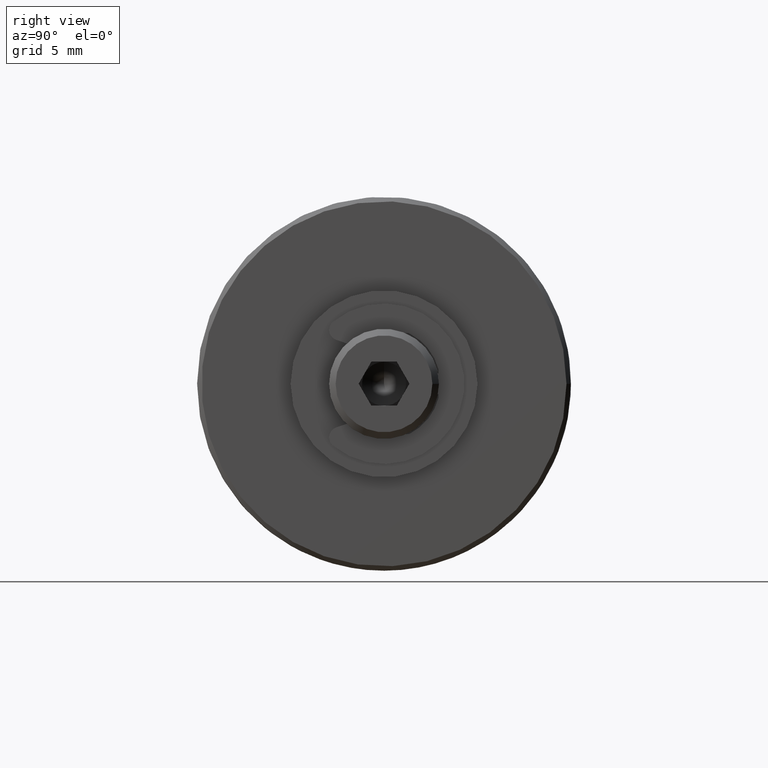
[diagram: clean part render]
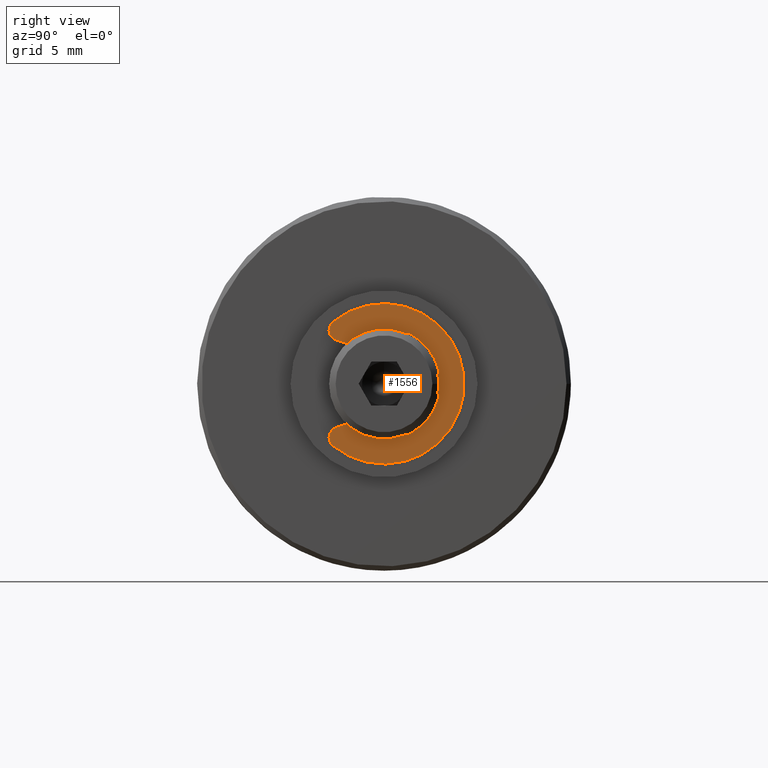
[diagram: same view with one face highlighted and labeled with its STEP entity id]
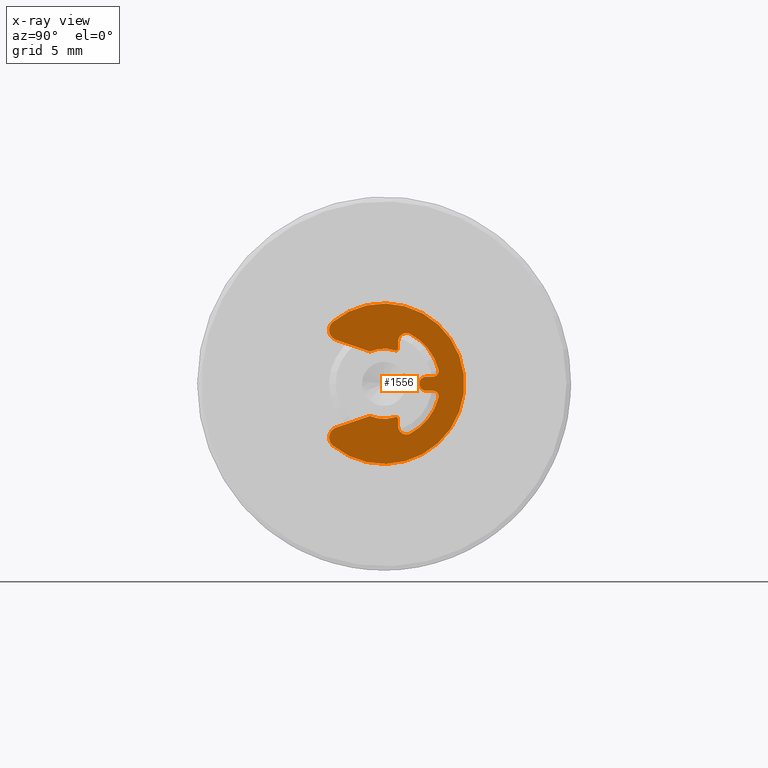
[diagram: x-ray of the same camera — body ghosted, the highlighted face saturated]
A machine part, right view. The second image highlights one B-rep face of the part: STEP entity #1556.
The next image is the same camera in x-ray: the body ghosted, the highlighted face saturated — about 0% of this face is hidden behind the body in this view.
In plain terms, the highlighted planar face has unit normal (-1, 0, 0).
Its self-contained STEP definition (entity closure, byte-faithful):
#124=PLANE('',#1879);
#247=FACE_OUTER_BOUND('',#353,.T.);
#353=EDGE_LOOP('',(#1410,#1411,#1412,#1413,#1414,#1415,#1416,#1417,#1418,
#1419,#1420,#1421,#1422,#1423,#1424,#1425,#1426,#1427,#1428,#1429));
#443=LINE('',#2757,#558);
#448=LINE('',#2775,#563);
#454=LINE('',#2799,#569);
#458=LINE('',#2811,#573);
#464=LINE('',#2835,#579);
#469=LINE('',#2853,#584);
#558=VECTOR('',#2262,10.);
#563=VECTOR('',#2281,10.);
#569=VECTOR('',#2307,10.);
#573=VECTOR('',#2319,10.);
#579=VECTOR('',#2345,10.);
#584=VECTOR('',#2364,10.);
#645=CIRCLE('',#1833,3.65);
#647=CIRCLE('',#1836,0.48);
#649=CIRCLE('',#1840,1.6);
#651=CIRCLE('',#1843,0.096);
#653=CIRCLE('',#1847,0.384);
#655=CIRCLE('',#1850,2.56);
#657=CIRCLE('',#1853,0.256);
#659=CIRCLE('',#1857,0.32);
#661=CIRCLE('',#1861,0.256);
#663=CIRCLE('',#1864,2.56);
#665=CIRCLE('',#1867,0.384);
#667=CIRCLE('',#1871,0.096);
#669=CIRCLE('',#1874,1.6);
#671=CIRCLE('',#1878,0.48);
#770=VERTEX_POINT('',#2741);
#771=VERTEX_POINT('',#2743);
#773=VERTEX_POINT('',#2749);
#775=VERTEX_POINT('',#2755);
#777=VERTEX_POINT('',#2761);
#779=VERTEX_POINT('',#2767);
#781=VERTEX_POINT('',#2773);
#783=VERTEX_POINT('',#2779);
#785=VERTEX_POINT('',#2785);
#787=VERTEX_POINT('',#2791);
#789=VERTEX_POINT('',#2797);
#791=VERTEX_POINT('',#2803);
#793=VERTEX_POINT('',#2809);
#795=VERTEX_POINT('',#2815);
#797=VERTEX_POINT('',#2821);
#799=VERTEX_POINT('',#2827);
#801=VERTEX_POINT('',#2833);
#803=VERTEX_POINT('',#2839);
#805=VERTEX_POINT('',#2845);
#807=VERTEX_POINT('',#2851);
#964=EDGE_CURVE('',#770,#771,#645,.T.);
#968=EDGE_CURVE('',#773,#770,#647,.T.);
#971=EDGE_CURVE('',#775,#773,#443,.T.);
#974=EDGE_CURVE('',#777,#775,#649,.T.);
#977=EDGE_CURVE('',#779,#777,#651,.T.);
#980=EDGE_CURVE('',#781,#779,#448,.T.);
#983=EDGE_CURVE('',#783,#781,#653,.T.);
#986=EDGE_CURVE('',#785,#783,#655,.T.);
#989=EDGE_CURVE('',#787,#785,#657,.T.);
#992=EDGE_CURVE('',#789,#787,#454,.T.);
#995=EDGE_CURVE('',#791,#789,#659,.T.);
#998=EDGE_CURVE('',#793,#791,#458,.T.);
#1001=EDGE_CURVE('',#795,#793,#661,.T.);
#1004=EDGE_CURVE('',#797,#795,#663,.T.);
#1007=EDGE_CURVE('',#799,#797,#665,.T.);
#1010=EDGE_CURVE('',#801,#799,#464,.T.);
#1013=EDGE_CURVE('',#803,#801,#667,.T.);
#1016=EDGE_CURVE('',#805,#803,#669,.T.);
#1019=EDGE_CURVE('',#807,#805,#469,.T.);
#1021=EDGE_CURVE('',#771,#807,#671,.T.);
#1410=ORIENTED_EDGE('',*,*,#964,.F.);
#1411=ORIENTED_EDGE('',*,*,#968,.F.);
#1412=ORIENTED_EDGE('',*,*,#971,.F.);
#1413=ORIENTED_EDGE('',*,*,#974,.F.);
#1414=ORIENTED_EDGE('',*,*,#977,.F.);
#1415=ORIENTED_EDGE('',*,*,#980,.F.);
#1416=ORIENTED_EDGE('',*,*,#983,.F.);
#1417=ORIENTED_EDGE('',*,*,#986,.F.);
#1418=ORIENTED_EDGE('',*,*,#989,.F.);
#1419=ORIENTED_EDGE('',*,*,#992,.F.);
#1420=ORIENTED_EDGE('',*,*,#995,.F.);
#1421=ORIENTED_EDGE('',*,*,#998,.F.);
#1422=ORIENTED_EDGE('',*,*,#1001,.F.);
#1423=ORIENTED_EDGE('',*,*,#1004,.F.);
#1424=ORIENTED_EDGE('',*,*,#1007,.F.);
#1425=ORIENTED_EDGE('',*,*,#1010,.F.);
#1426=ORIENTED_EDGE('',*,*,#1013,.F.);
#1427=ORIENTED_EDGE('',*,*,#1016,.F.);
#1428=ORIENTED_EDGE('',*,*,#1019,.F.);
#1429=ORIENTED_EDGE('',*,*,#1021,.F.);
#1556=ADVANCED_FACE('',(#247),#124,.F.);
#1833=AXIS2_PLACEMENT_3D('',#2744,#2248,#2249);
#1836=AXIS2_PLACEMENT_3D('',#2751,#2256,#2257);
#1840=AXIS2_PLACEMENT_3D('',#2763,#2268,#2269);
#1843=AXIS2_PLACEMENT_3D('',#2769,#2275,#2276);
#1847=AXIS2_PLACEMENT_3D('',#2781,#2287,#2288);
#1850=AXIS2_PLACEMENT_3D('',#2787,#2294,#2295);
#1853=AXIS2_PLACEMENT_3D('',#2793,#2301,#2302);
#1857=AXIS2_PLACEMENT_3D('',#2805,#2313,#2314);
#1861=AXIS2_PLACEMENT_3D('',#2817,#2325,#2326);
#1864=AXIS2_PLACEMENT_3D('',#2823,#2332,#2333);
#1867=AXIS2_PLACEMENT_3D('',#2829,#2339,#2340);
#1871=AXIS2_PLACEMENT_3D('',#2841,#2351,#2352);
#1874=AXIS2_PLACEMENT_3D('',#2847,#2358,#2359);
#1878=AXIS2_PLACEMENT_3D('',#2856,#2369,#2370);
#1879=AXIS2_PLACEMENT_3D('',#2857,#2371,#2372);
#2248=DIRECTION('center_axis',(0.,0.,1.));
#2249=DIRECTION('ref_axis',(0.771204739168986,-0.636587189851709,0.));
#2256=DIRECTION('center_axis',(0.,0.,1.));
#2257=DIRECTION('ref_axis',(-0.946245514439579,-0.323449264032208,0.));
#2262=DIRECTION('',(0.323449264032209,-0.946245514439579,0.));
#2268=DIRECTION('center_axis',(0.,0.,-1.));
#2269=DIRECTION('ref_axis',(-0.916515138991168,0.400000000000001,0.));
#2275=DIRECTION('center_axis',(0.,0.,1.));
#2276=DIRECTION('ref_axis',(0.,1.,0.));
#2281=DIRECTION('',(-1.,-8.85027018171343E-16,0.));
#2287=DIRECTION('center_axis',(0.,0.,-1.));
#2288=DIRECTION('ref_axis',(0.,1.,0.));
#2294=DIRECTION('center_axis',(0.,0.,-1.));
#2295=DIRECTION('ref_axis',(-0.882352941176471,-0.470588235294117,0.));
#2301=DIRECTION('center_axis',(0.,0.,-1.));
#2302=DIRECTION('ref_axis',(-0.25,-0.968245836551854,0.));
#2307=DIRECTION('',(4.46463097118662E-16,1.,0.));
#2313=DIRECTION('center_axis',(0.,0.,1.));
#2314=DIRECTION('ref_axis',(-1.,-3.79470760369926E-16,0.));
#2319=DIRECTION('',(4.46463097118662E-16,-1.,0.));
#2325=DIRECTION('center_axis',(0.,0.,-1.));
#2326=DIRECTION('ref_axis',(-1.,-4.06575814682064E-16,0.));
#2332=DIRECTION('center_axis',(0.,0.,-1.));
#2333=DIRECTION('ref_axis',(0.25,-0.968245836551854,0.));
#2339=DIRECTION('center_axis',(0.,0.,-1.));
#2340=DIRECTION('ref_axis',(0.882352941176471,-0.470588235294117,0.));
#2345=DIRECTION('',(-1.,8.85027018171343E-16,0.));
#2351=DIRECTION('center_axis',(0.,0.,1.));
#2352=DIRECTION('ref_axis',(0.947162294189519,-0.320754716981132,0.));
#2358=DIRECTION('center_axis',(0.,0.,-1.));
#2359=DIRECTION('ref_axis',(0.947162294189519,-0.320754716981132,0.));
#2364=DIRECTION('',(0.323449264032209,0.946245514439579,0.));
#2369=DIRECTION('center_axis',(0.,0.,1.));
#2370=DIRECTION('ref_axis',(-0.771204739168986,-0.636587189851709,0.));
#2371=DIRECTION('center_axis',(0.,0.,1.));
#2372=DIRECTION('ref_axis',(1.,0.,0.));
#2741=CARTESIAN_POINT('',(2.8148972979668,-4.29989523289174,0.));
#2743=CARTESIAN_POINT('',(-2.8148972979668,-4.29989523289174,0.));
#2744=CARTESIAN_POINT('Origin',(1.65327317884893E-16,-1.976351989933,0.));
#2749=CARTESIAN_POINT('',(1.99052117623469,-4.14958902849838,0.));
#2751=CARTESIAN_POINT('Origin',(2.44471902316569,-3.99433338176292,0.));
#2755=CARTESIAN_POINT('',(1.46642422238587,-2.616351989933,0.));
#2757=CARTESIAN_POINT('',(1.46642422238587,-2.616351989933,0.));
#2761=CARTESIAN_POINT('',(1.51545967070323,-1.46314444276319,0.));
#2763=CARTESIAN_POINT('Origin',(1.65327317884893E-16,-1.976351989933,0.));
#2767=CARTESIAN_POINT('',(1.60638725094542,-1.336351989933,0.));
#2769=CARTESIAN_POINT('Origin',(1.60638725094542,-1.432351989933,0.));
#2773=CARTESIAN_POINT('',(1.92,-1.336351989933,0.));
#2775=CARTESIAN_POINT('',(1.92,-1.336351989933,0.));
#2779=CARTESIAN_POINT('',(2.25882352941177,-0.77164610758006,0.));
#2781=CARTESIAN_POINT('Origin',(1.92,-0.952351989933001,0.));
#2785=CARTESIAN_POINT('',(0.64,0.502357351639747,0.));
#2787=CARTESIAN_POINT('Origin',(1.65327317884893E-16,-1.976351989933,0.));
#2791=CARTESIAN_POINT('',(0.32,0.254486417482472,0.));
#2793=CARTESIAN_POINT('Origin',(0.576,0.254486417482472,0.));
#2797=CARTESIAN_POINT('',(0.32,-0.0563519899330012,0.));
#2799=CARTESIAN_POINT('',(0.32,-0.0563519899330012,0.));
#2803=CARTESIAN_POINT('',(-0.32,-0.0563519899330012,0.));
#2805=CARTESIAN_POINT('Origin',(-1.67037747251847E-33,-0.056351989933001,
0.));
#2809=CARTESIAN_POINT('',(-0.32,0.254486417482472,0.));
#2811=CARTESIAN_POINT('',(-0.32,0.254486417482472,0.));
#2815=CARTESIAN_POINT('',(-0.64,0.502357351639747,0.));
#2817=CARTESIAN_POINT('Origin',(-0.576,0.254486417482472,0.));
#2821=CARTESIAN_POINT('',(-2.25882352941177,-0.77164610758006,0.));
#2823=CARTESIAN_POINT('Origin',(1.65327317884893E-16,-1.976351989933,0.));
#2827=CARTESIAN_POINT('',(-1.92,-1.336351989933,0.));
#2829=CARTESIAN_POINT('Origin',(-1.92,-0.952351989933001,0.));
#2833=CARTESIAN_POINT('',(-1.60638725094542,-1.336351989933,0.));
#2835=CARTESIAN_POINT('',(-1.60638725094542,-1.336351989933,0.));
#2839=CARTESIAN_POINT('',(-1.51545967070323,-1.46314444276319,0.));
#2841=CARTESIAN_POINT('Origin',(-1.60638725094542,-1.432351989933,0.));
#2845=CARTESIAN_POINT('',(-1.46642422238587,-2.616351989933,0.));
#2847=CARTESIAN_POINT('Origin',(1.65327317884893E-16,-1.976351989933,0.));
#2851=CARTESIAN_POINT('',(-1.99052117623469,-4.14958902849838,0.));
#2853=CARTESIAN_POINT('',(-1.99052117623469,-4.14958902849838,0.));
#2856=CARTESIAN_POINT('Origin',(-2.44471902316569,-3.99433338176292,0.));
#2857=CARTESIAN_POINT('Origin',(-3.46944695195361E-17,-1.21558532624017,
0.));